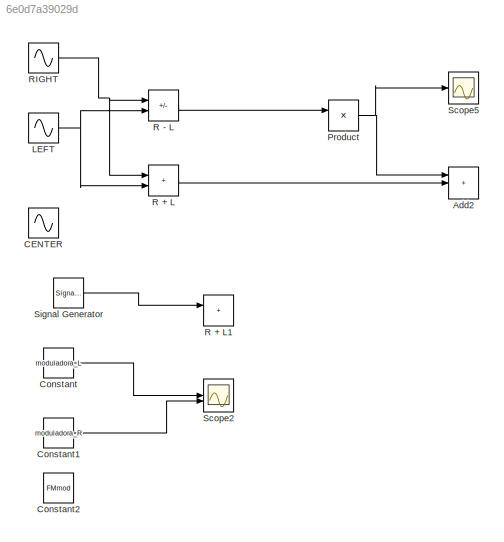
MODEL slx_6e0d7a39029d
KIND model
CONFIG AbsTol = auto
CONFIG EnableMultiTasking = off
CONFIG FixedStep = auto
CONFIG MaxStep = auto
CONFIG MinStep = auto
CONFIG RelTol = 1e-3
CONFIG SampleTimeConstraint = Unconstrained
CONFIG SolverName = VariableStepAuto
CONFIG StartTime = 0.0
CONFIG StopTime = 10.0
BLOCK [Sum]  R - L
  IconShape = rectangular
  Inputs = -+
BLOCK [Sum] Add2
  IconShape = rectangular
  Inputs = +++
BLOCK [Sin] CENTER
  Frequency = 33
  SampleTime = 0
BLOCK [Constant] Constant
  Value = moduladora_L
BLOCK [Constant] Constant1
  Value = moduladora_R
BLOCK [Constant] Constant2
  Value = FMmod
BLOCK [Sin] LEFT
  Frequency = 200
  SampleTime = 0
BLOCK [Product] Product
BLOCK [Sum] R + L
  IconShape = rectangular
BLOCK [Sum] R + L1
  IconShape = rectangular
BLOCK [Sin] RIGHT
  Frequency = 100
  SampleTime = 0
BLOCK [Scope] Scope2
  Floating = off
  NumInputPorts = 2
  ScopeSpecificationString = Simulink.scopes.TimeScopeBlockCfg('CurrentConfiguration', extmgr.ConfigurationSet(extmgr.Configuration('Core','General UI',true),extmgr.Configuration('Core','Source UI',true),extmgr.Configuration('Sources','WiredSimulink',true,'DataLoggingVariableName','ScopeData1'),extmgr.Configuration('Visuals','Time Domain',true,'SerializedDisplays',{struct('MinYLimReal','-1.23537','MaxYLimReal','2.04422','YLab...<+1433ch>
BLOCK [Scope] Scope5
  Floating = off
  NumInputPorts = 1
  ScopeSpecificationString = Simulink.scopes.TimeScopeBlockCfg('CurrentConfiguration', extmgr.ConfigurationSet(extmgr.Configuration('Core','General UI',true),extmgr.Configuration('Core','Source UI',true),extmgr.Configuration('Sources','WiredSimulink',true,'DataLoggingVariableName','ScopeData2'),extmgr.Configuration('Visuals','Time Domain',true,'SerializedDisplays',{struct('MinYLimReal','-2.16414','MaxYLimReal','2.17585','YLab...<+1413ch>
BLOCK [SignalGenerator] Signal Generator
  Frequency = 2
LINE  R - L:1 -> Product:1
LINE Constant1:1 -> Scope2:2
LINE Constant:1 -> Scope2:1
NET LEFT:1 ->  R - L:2, R + L:2
NET Product:1 -> Add2:1, Scope5:1
LINE R + L:1 -> Add2:2
NET RIGHT:1 ->  R - L:1, R + L:1
LINE Signal Generator:1 -> R + L1:1
note: NET lines group one-source signal fan-out (src -> all destinations, sorted); 1:1 wires keep LINE
